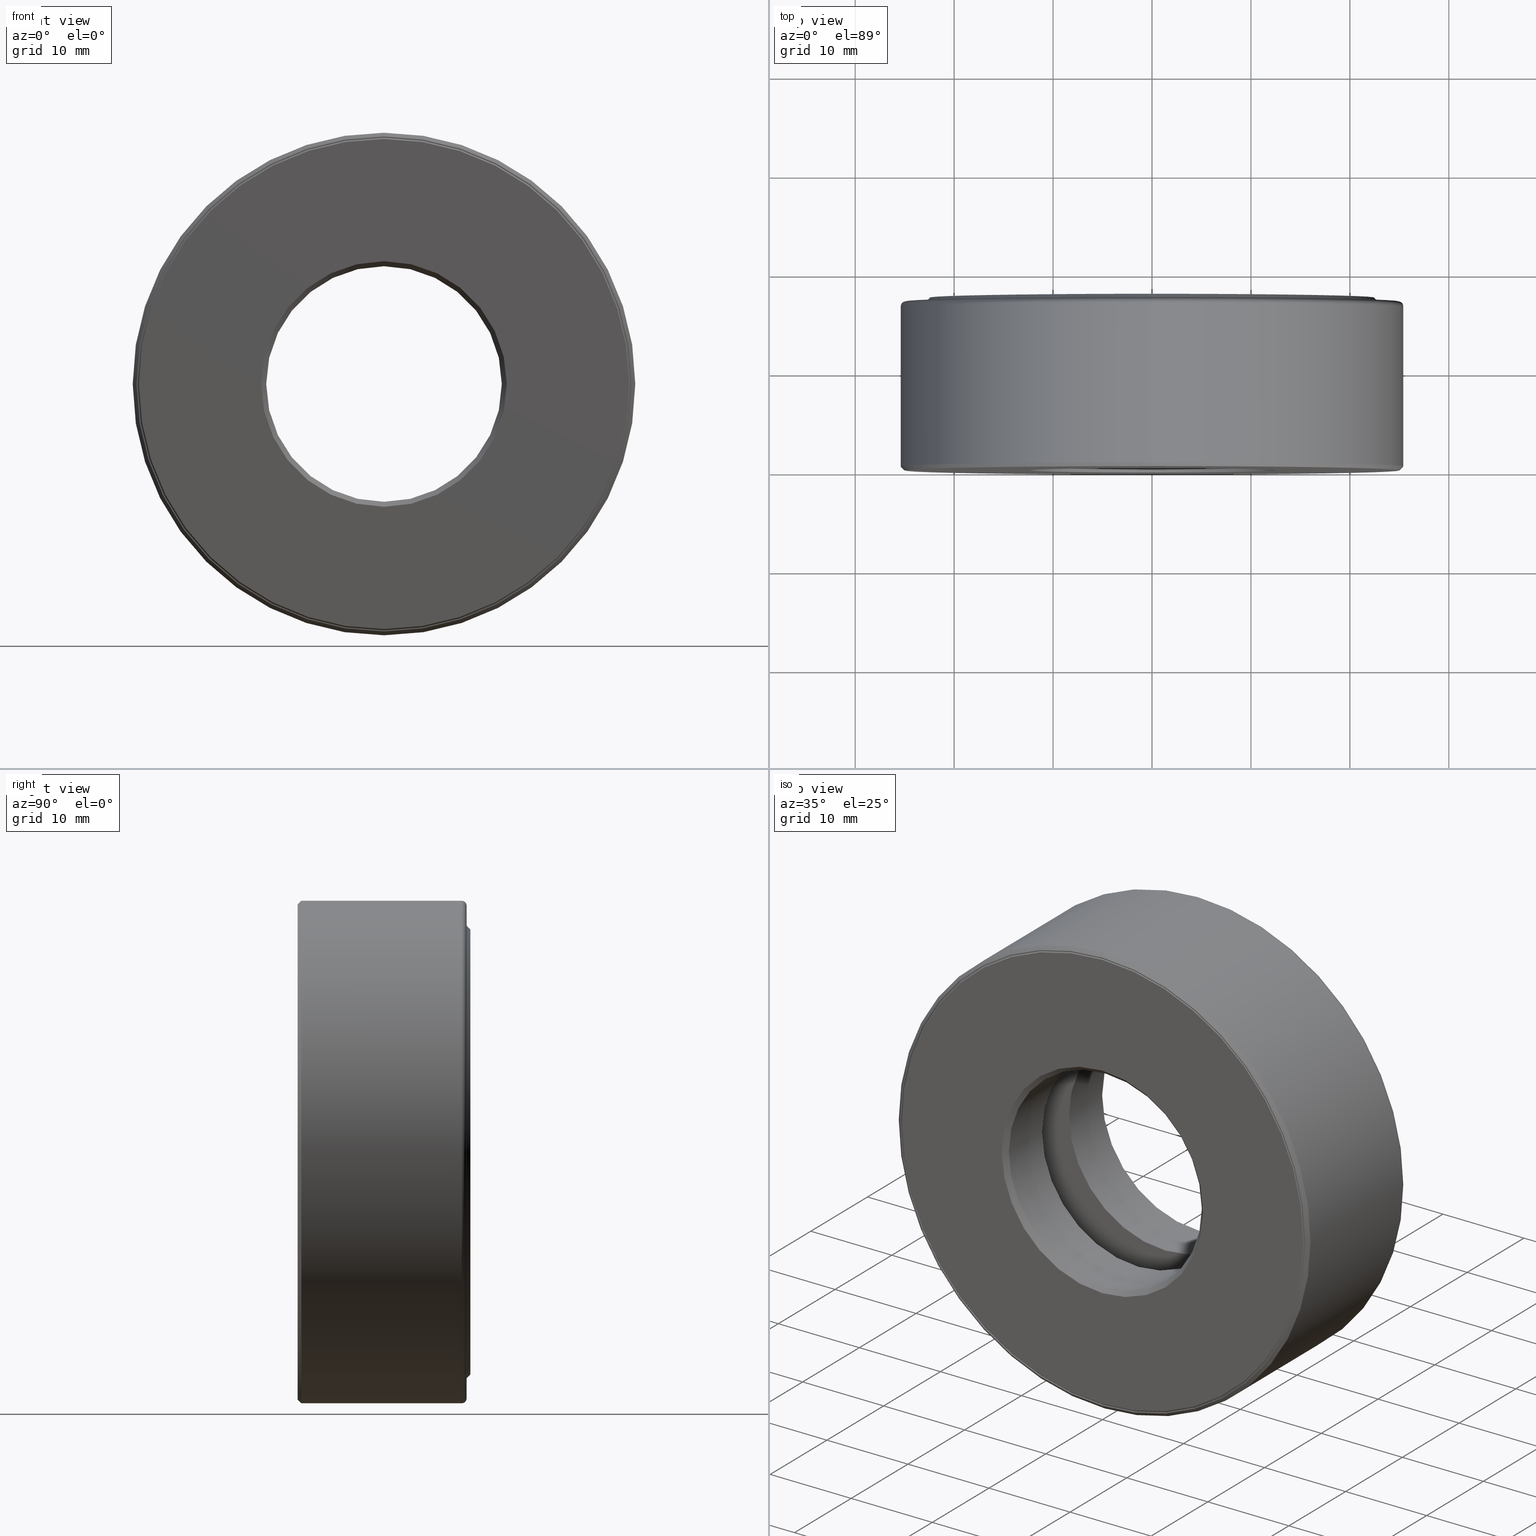
[diagram: canonical four-view strip — front | top / right | iso, engineering-drawing reading convention]
A machine part, canonical four-view strip (front | top / right | iso — engineering-drawing reading convention). The complete STEP part file that produces these views, byte-faithful:
ISO-10303-21;
HEADER;
FILE_DESCRIPTION (( 'STEP AP203' ),
    '1' );
FILE_NAME ('T-100-6.step',
    '2016-06-29T18:27:14',
    ( '' ),
    ( '' ),
    'SwSTEP 2.0',
    'SolidWorks 2016',
    '' );
FILE_SCHEMA (( 'CONFIG_CONTROL_DESIGN' ));
ENDSEC;

DATA;
#1 = AXIS2_PLACEMENT_3D ( 'NONE', #404, #363, #543 ) ;
#2 = COORDINATED_UNIVERSAL_TIME_OFFSET ( 5, 0, .BEHIND. ) ;
#3 = FACE_OUTER_BOUND ( 'NONE', #171, .T. ) ;
#4 = EDGE_CURVE ( 'NONE', #430, #430, #428, .T. ) ;
#5 = CARTESIAN_POINT ( 'NONE',  ( 0.0000000000000000000, -6.616194359655631800E-017, 0.0000000000000000000 ) ) ;
#6 = DIRECTION ( 'NONE',  ( -0.0000000000000000000, 1.000000000000000000, -0.0000000000000000000 ) ) ;
#7 = CLOSED_SHELL ( 'NONE', ( #176 ) ) ;
#8 = CIRCLE ( 'NONE', #86, 0.6897499999999997500 ) ;
#9 = CC_DESIGN_PERSON_AND_ORGANIZATION_ASSIGNMENT ( #237, #167, ( #437 ) ) ;
#10 = VERTEX_POINT ( 'NONE', #209 ) ;
#11 = MANIFOLD_SOLID_BREP ( 'Revolve2[1]', #240 ) ;
#12 = AXIS2_PLACEMENT_3D ( 'NONE', #565, #425, #153 ) ;
#13 = EDGE_LOOP ( 'NONE', ( #570 ) ) ;
#14 = CARTESIAN_POINT ( 'NONE',  ( 0.0000000000000000000, 0.0000000000000000000, 0.0000000000000000000 ) ) ;
#15 = EDGE_LOOP ( 'NONE', ( #163 ) ) ;
#16 = PERSON_AND_ORGANIZATION ( #467, #351 ) ;
#17 = CARTESIAN_POINT ( 'NONE',  ( 0.0000000000000000000, 0.4375000000000000000, 0.9397499999999998600 ) ) ;
#18 = FACE_OUTER_BOUND ( 'NONE', #348, .T. ) ;
#19 = EDGE_CURVE ( 'NONE', #322, #322, #332, .T. ) ;
#20 = CARTESIAN_POINT ( 'NONE',  ( 0.0000000000000000000, 0.4375000000000000000, 0.6897499999999997500 ) ) ;
#21 = PERSON_AND_ORGANIZATION_ROLE ( 'design_owner' ) ;
#22 = ORIENTED_EDGE ( 'NONE', *, *, #99, .T. ) ;
#23 = EDGE_LOOP ( 'NONE', ( #373 ) ) ;
#24 = DIRECTION ( 'NONE',  ( 0.0000000000000000000, -0.0000000000000000000, -1.000000000000000000 ) ) ;
#25 = AXIS2_PLACEMENT_3D ( 'NONE', #553, #504, #82 ) ;
#26 = COORDINATED_UNIVERSAL_TIME_OFFSET ( 5, 0, .BEHIND. ) ;
#27 = SECURITY_CLASSIFICATION_LEVEL ( 'unclassified' ) ;
#28 = CC_DESIGN_DATE_AND_TIME_ASSIGNMENT ( #258, #71, ( #437 ) ) ;
#29 = MANIFOLD_SOLID_BREP ( 'BALLS[2]', #7 ) ;
#30 = EDGE_LOOP ( 'NONE', ( #81 ) ) ;
#31 = EDGE_LOOP ( 'NONE', ( #102 ) ) ;
#32 = DIRECTION ( 'NONE',  ( 0.0000000000000000000, 0.0000000000000000000, 1.000000000000000000 ) ) ;
#33 = FACE_BOUND ( 'NONE', #37, .T. ) ;
#34 = AXIS2_PLACEMENT_3D ( 'NONE', #471, #54, #100 ) ;
#35 = DIRECTION ( 'NONE',  ( 0.0000000000000000000, 0.0000000000000000000, 1.000000000000000000 ) ) ;
#36 = MANIFOLD_SOLID_BREP ( 'Revolve2[2]', #195 ) ;
#37 = EDGE_LOOP ( 'NONE', ( #576 ) ) ;
#38 = ORIENTED_EDGE ( 'NONE', *, *, #453, .T. ) ;
#39 = DIRECTION ( 'NONE',  ( -0.0000000000000000000, 1.000000000000000000, -0.0000000000000000000 ) ) ;
#40 = DIRECTION ( 'NONE',  ( 0.0000000000000000000, 0.0000000000000000000, 1.000000000000000000 ) ) ;
#41 = CARTESIAN_POINT ( 'NONE',  ( 0.0000000000000000000, 0.6875000000000000000, 0.0000000000000000000 ) ) ;
#42 = ADVANCED_FACE ( 'NONE', ( #215, #120 ), #401, .T. ) ;
#43 = EDGE_LOOP ( 'NONE', ( #563 ) ) ;
#44 = CYLINDRICAL_SURFACE ( 'NONE', #555, 0.4687500000000000000 ) ;
#45 = VERTEX_POINT ( 'NONE', #344 ) ;
#46 = CONICAL_SURFACE ( 'NONE', #251, 0.8849999999999996800, 0.7853981633974482800 ) ;
#47 = EDGE_CURVE ( 'NONE', #526, #526, #442, .T. ) ;
#48 = ADVANCED_FACE ( 'NONE', ( ), #275, .T. ) ;
#49 = ORIENTED_EDGE ( 'NONE', *, *, #339, .T. ) ;
#50 = FACE_OUTER_BOUND ( 'NONE', #447, .T. ) ;
#51 = CARTESIAN_POINT ( 'NONE',  ( 0.0000000000000000000, 0.6875000000000000000, 0.0000000000000000000 ) ) ;
#52 = AXIS2_PLACEMENT_3D ( 'NONE', #84, #561, #323 ) ;
#53 = ADVANCED_FACE ( 'NONE', ( #513, #536 ), #380, .F. ) ;
#54 = DIRECTION ( 'NONE',  ( -0.0000000000000000000, 1.000000000000000000, -0.0000000000000000000 ) ) ;
#55 = EDGE_CURVE ( 'NONE', #585, #585, #158, .T. ) ;
#56 = DIRECTION ( 'NONE',  ( -0.0000000000000000000, 1.000000000000000000, -0.0000000000000000000 ) ) ;
#57 = EDGE_LOOP ( 'NONE', ( #590 ) ) ;
#58 = ORIENTED_EDGE ( 'NONE', *, *, #308, .T. ) ;
#59 = DIRECTION ( 'NONE',  ( 0.0000000000000000000, 0.0000000000000000000, 1.000000000000000000 ) ) ;
#60 = VERTEX_POINT ( 'NONE', #573 ) ;
#61 = CIRCLE ( 'NONE', #173, 0.8849999999999996800 ) ;
#62 = APPROVAL_STATUS ( 'not_yet_approved' ) ;
#63 = AXIS2_PLACEMENT_3D ( 'NONE', #473, #478, #147 ) ;
#64 = DIRECTION ( 'NONE',  ( 0.0000000000000000000, -1.000000000000000000, 0.0000000000000000000 ) ) ;
#65 = CARTESIAN_POINT ( 'NONE',  ( 0.0000000000000000000, 0.2500000000000001100, 0.4687500000000001100 ) ) ;
#66 = CARTESIAN_POINT ( 'NONE',  ( 0.0000000000000000000, 0.6524999999999997500, 0.0000000000000000000 ) ) ;
#67 = ORIENTED_EDGE ( 'NONE', *, *, #542, .F. ) ;
#68 = FACE_OUTER_BOUND ( 'NONE', #310, .T. ) ;
#69 = CARTESIAN_POINT ( 'NONE',  ( 0.0000000000000000000, 0.6724999999999998800, 0.0000000000000000000 ) ) ;
#70 = DIRECTION ( 'NONE',  ( 0.0000000000000000000, -0.0000000000000000000, -1.000000000000000000 ) ) ;
#71 = DATE_TIME_ROLE ( 'creation_date' ) ;
#72 = EDGE_LOOP ( 'NONE', ( #104 ) ) ;
#73 = MANIFOLD_SOLID_BREP ( 'BALLS[3]', #219 ) ;
#74 = CYLINDRICAL_SURFACE ( 'NONE', #108, 0.4687500000000001100 ) ;
#75 = DIRECTION ( 'NONE',  ( -0.0000000000000000000, 1.000000000000000000, 0.0000000000000000000 ) ) ;
#76 = AXIS2_PLACEMENT_3D ( 'NONE', #229, #88, #365 ) ;
#77 = LOCAL_TIME ( 14, 27, 13.00000000000000000, #151 ) ;
#78 = CARTESIAN_POINT ( 'NONE',  ( 0.0000000000000000000, 0.01499999999999997700, 0.0000000000000000000 ) ) ;
#79 = ADVANCED_FACE ( 'NONE', ( #496, #490 ), #554, .T. ) ;
#80 = DIRECTION ( 'NONE',  ( 0.0000000000000000000, 0.0000000000000000000, 1.000000000000000000 ) ) ;
#81 = ORIENTED_EDGE ( 'NONE', *, *, #339, .F. ) ;
#82 = DIRECTION ( 'NONE',  ( -1.000000000000000000, 0.0000000000000000000, 6.982962677686269100E-015 ) ) ;
#83 = DIRECTION ( 'NONE',  ( 0.0000000000000000000, 0.0000000000000000000, 1.000000000000000000 ) ) ;
#84 = CARTESIAN_POINT ( 'NONE',  ( 0.0000000000000000000, 0.6724999999999998800, 0.0000000000000000000 ) ) ;
#85 = DIRECTION ( 'NONE',  ( 0.0000000000000000000, -0.0000000000000000000, -1.000000000000000000 ) ) ;
#86 = AXIS2_PLACEMENT_3D ( 'NONE', #550, #549, #83 ) ;
#87 = EDGE_LOOP ( 'NONE', ( #341 ) ) ;
#88 = DIRECTION ( 'NONE',  ( -0.0000000000000000000, 1.000000000000000000, -0.0000000000000000000 ) ) ;
#89 = ORIENTED_EDGE ( 'NONE', *, *, #347, .F. ) ;
#90 = LOCAL_TIME ( 14, 27, 13.00000000000000000, #2 ) ;
#91 = PRODUCT_RELATED_PRODUCT_CATEGORY ( 'detail', '', ( #569 ) ) ;
#92 = CIRCLE ( 'NONE', #214, 0.9397499999999998600 ) ;
#93 = AXIS2_PLACEMENT_3D ( 'NONE', #201, #283, #239 ) ;
#94 = ORIENTED_EDGE ( 'NONE', *, *, #324, .F. ) ;
#95 = DIRECTION ( 'NONE',  ( -0.0000000000000000000, 1.000000000000000000, -0.0000000000000000000 ) ) ;
#96 = DIRECTION ( 'NONE',  ( 0.0000000000000000000, -1.000000000000000000, 0.0000000000000000000 ) ) ;
#97 = DATE_AND_TIME ( #579, #196 ) ;
#98 = FACE_OUTER_BOUND ( 'NONE', #31, .T. ) ;
#99 = EDGE_CURVE ( 'NONE', #279, #279, #289, .T. ) ;
#100 = DIRECTION ( 'NONE',  ( 0.0000000000000000000, 0.0000000000000000000, 1.000000000000000000 ) ) ;
#101 = DIRECTION ( 'NONE',  ( -0.0000000000000000000, 1.000000000000000000, 0.0000000000000000000 ) ) ;
#102 = ORIENTED_EDGE ( 'NONE', *, *, #99, .F. ) ;
#103 = DIRECTION ( 'NONE',  ( -0.0000000000000000000, 1.000000000000000000, -0.0000000000000000000 ) ) ;
#104 = ORIENTED_EDGE ( 'NONE', *, *, #19, .F. ) ;
#105 = DIMENSIONAL_EXPONENTS ( 1.000000000000000000, 0.0000000000000000000, 0.0000000000000000000, 0.0000000000000000000, 0.0000000000000000000, 0.0000000000000000000, 0.0000000000000000000 ) ;
#106 = VERTEX_POINT ( 'NONE', #17 ) ;
#107 = FACE_BOUND ( 'NONE', #552, .T. ) ;
#108 = AXIS2_PLACEMENT_3D ( 'NONE', #142, #95, #438 ) ;
#109 =( NAMED_UNIT ( * ) SI_UNIT ( $, .STERADIAN. ) SOLID_ANGLE_UNIT ( ) );
#110 = AXIS2_PLACEMENT_3D ( 'NONE', #540, #415, #409 ) ;
#111 = CARTESIAN_POINT ( 'NONE',  ( 0.0000000000000000000, 0.2499999999999999200, 0.9799999999999997600 ) ) ;
#112 = ORIENTED_EDGE ( 'NONE', *, *, #562, .F. ) ;
#113 = FACE_OUTER_BOUND ( 'NONE', #15, .T. ) ;
#114 = APPROVAL ( #439, 'UNSPECIFIED' ) ;
#115 = CARTESIAN_POINT ( 'NONE',  ( 0.0000000000000000000, -6.296055922898104700E-017, 0.9749999999999999800 ) ) ;
#116 = FACE_OUTER_BOUND ( 'NONE', #530, .T. ) ;
#117 = CARTESIAN_POINT ( 'NONE',  ( 0.0000000000000000000, 0.6524999999999997500, 1.000000000000000000 ) ) ;
#118 = CARTESIAN_POINT ( 'NONE',  ( 0.0000000000000000000, 0.0000000000000000000, 0.0000000000000000000 ) ) ;
#119 = ORIENTED_EDGE ( 'NONE', *, *, #448, .F. ) ;
#120 = FACE_OUTER_BOUND ( 'NONE', #23, .T. ) ;
#121 = AXIS2_PLACEMENT_3D ( 'NONE', #182, #227, #271 ) ;
#122 = PERSON_AND_ORGANIZATION_ROLE ( 'creator' ) ;
#123 = CALENDAR_DATE ( 2016, 29, 6 ) ;
#124 = EDGE_LOOP ( 'NONE', ( #396 ) ) ;
#125 = EDGE_LOOP ( 'NONE', ( #49 ) ) ;
#126 = CARTESIAN_POINT ( 'NONE',  ( 0.0000000000000000000, 0.005000000000000000100, 0.0000000000000000000 ) ) ;
#127 = AXIS2_PLACEMENT_3D ( 'NONE', #159, #484, #24 ) ;
#128 = PERSON_AND_ORGANIZATION ( #467, #351 ) ;
#129 = FACE_OUTER_BOUND ( 'NONE', #125, .T. ) ;
#130 = PLANE ( 'NONE',  #370 ) ;
#131 =( GEOMETRIC_REPRESENTATION_CONTEXT ( 3 ) GLOBAL_UNCERTAINTY_ASSIGNED_CONTEXT ( ( #598 ) ) GLOBAL_UNIT_ASSIGNED_CONTEXT ( ( #432, #346, #109 ) ) REPRESENTATION_CONTEXT ( 'NONE', 'WORKASPACE' ) );
#132 = CARTESIAN_POINT ( 'NONE',  ( 0.0000000000000000000, 0.3437499999999998300, 0.0000000000000000000 ) ) ;
#133 = DIRECTION ( 'NONE',  ( -0.0000000000000000000, 1.000000000000000000, 0.0000000000000000000 ) ) ;
#134 = ORIENTED_EDGE ( 'NONE', *, *, #317, .F. ) ;
#135 = CIRCLE ( 'NONE', #121, 0.4687500000000001100 ) ;
#136 = CC_DESIGN_PERSON_AND_ORGANIZATION_ASSIGNMENT ( #16, #170, ( #477 ) ) ;
#137 = COORDINATED_UNIVERSAL_TIME_OFFSET ( 5, 0, .BEHIND. ) ;
#138 = AXIS2_PLACEMENT_3D ( 'NONE', #517, #193, #465 ) ;
#139 = ADVANCED_FACE ( 'NONE', ( #356, #236 ), #482, .F. ) ;
#140 = EDGE_LOOP ( 'NONE', ( #364 ) ) ;
#141 = EDGE_LOOP ( 'NONE', ( #507 ) ) ;
#142 = CARTESIAN_POINT ( 'NONE',  ( 0.0000000000000000000, 0.0000000000000000000, 0.0000000000000000000 ) ) ;
#143 = PERSON_AND_ORGANIZATION ( #467, #351 ) ;
#144 = AXIS2_PLACEMENT_3D ( 'NONE', #222, #226, #368 ) ;
#145 = CC_DESIGN_APPROVAL ( #114, ( #276 ) ) ;
#146 = CIRCLE ( 'NONE', #224, 0.9799999999999997600 ) ;
#147 = DIRECTION ( 'NONE',  ( 1.047444401652940000E-014, 0.0000000000000000000, 1.000000000000000000 ) ) ;
#148 = CARTESIAN_POINT ( 'NONE',  ( -8.194164824205915600E-033, -3.148027961449053600E-017, 0.0000000000000000000 ) ) ;
#149 = EDGE_LOOP ( 'NONE', ( #399 ) ) ;
#150 = EDGE_LOOP ( 'NONE', ( #228 ) ) ;
#151 = COORDINATED_UNIVERSAL_TIME_OFFSET ( 5, 0, .BEHIND. ) ;
#152 = AXIS2_PLACEMENT_3D ( 'NONE', #359, #39, #367 ) ;
#153 = DIRECTION ( 'NONE',  ( 0.0000000000000000000, 0.0000000000000000000, 1.000000000000000000 ) ) ;
#154 = PLANE ( 'NONE',  #235 ) ;
#155 = CC_DESIGN_DATE_AND_TIME_ASSIGNMENT ( #498, #587, ( #477 ) ) ;
#156 = EDGE_LOOP ( 'NONE', ( #568 ) ) ;
#157 = DIRECTION ( 'NONE',  ( 0.0000000000000000000, 0.0000000000000000000, 1.000000000000000000 ) ) ;
#158 = CIRCLE ( 'NONE', #76, 0.4687500000000001100 ) ;
#159 = CARTESIAN_POINT ( 'NONE',  ( 2.120999995080945500E-016, 0.2499999999999999200, 0.0000000000000000000 ) ) ;
#160 = FACE_OUTER_BOUND ( 'NONE', #141, .T. ) ;
#161 = AXIS2_PLACEMENT_3D ( 'NONE', #529, #208, #157 ) ;
#162 = CARTESIAN_POINT ( 'NONE',  ( 0.0000000000000000000, -6.398792618417301800E-017, 0.9799999999999997600 ) ) ;
#163 = ORIENTED_EDGE ( 'NONE', *, *, #4, .F. ) ;
#164 = FACE_OUTER_BOUND ( 'NONE', #273, .T. ) ;
#165 = CARTESIAN_POINT ( 'NONE',  ( 0.0000000000000000000, 0.0000000000000000000, 0.4887500000000000700 ) ) ;
#166 = VERTEX_POINT ( 'NONE', #20 ) ;
#167 = PERSON_AND_ORGANIZATION_ROLE ( 'creator' ) ;
#168 = CARTESIAN_POINT ( 'NONE',  ( 0.0000000000000000000, 0.2499999999999998900, 0.0000000000000000000 ) ) ;
#169 = CARTESIAN_POINT ( 'NONE',  ( 0.0000000000000000000, 0.02000000000000005900, 0.0000000000000000000 ) ) ;
#170 = PERSON_AND_ORGANIZATION_ROLE ( 'classification_officer' ) ;
#171 = EDGE_LOOP ( 'NONE', ( #489 ) ) ;
#172 = SPHERICAL_SURFACE ( 'NONE', #25, 0.1562500000000000000 ) ;
#173 = AXIS2_PLACEMENT_3D ( 'NONE', #41, #318, #177 ) ;
#174 = CALENDAR_DATE ( 2016, 29, 6 ) ;
#175 = FACE_BOUND ( 'NONE', #440, .T. ) ;
#176 = ADVANCED_FACE ( 'NONE', ( ), #172, .T. ) ;
#177 = DIRECTION ( 'NONE',  ( 0.0000000000000000000, 0.0000000000000000000, 1.000000000000000000 ) ) ;
#178 = CC_DESIGN_PERSON_AND_ORGANIZATION_ASSIGNMENT ( #584, #122, ( #276 ) ) ;
#179 = DIRECTION ( 'NONE',  ( 0.0000000000000000000, -1.000000000000000000, 0.0000000000000000000 ) ) ;
#180 = EDGE_CURVE ( 'NONE', #284, #284, #230, .T. ) ;
#181 = ORIENTED_EDGE ( 'NONE', *, *, #349, .T. ) ;
#182 = CARTESIAN_POINT ( 'NONE',  ( 0.0000000000000000000, 0.2500000000000001100, 0.0000000000000000000 ) ) ;
#183 = FACE_OUTER_BOUND ( 'NONE', #30, .T. ) ;
#184 = ADVANCED_FACE ( 'NONE', ( #113, #257 ), #44, .F. ) ;
#185 = DIRECTION ( 'NONE',  ( -0.0000000000000000000, 1.000000000000000000, -0.0000000000000000000 ) ) ;
#186 = AXIS2_PLACEMENT_3D ( 'NONE', #126, #499, #405 ) ;
#187 = EDGE_LOOP ( 'NONE', ( #67 ) ) ;
#188 = FACE_OUTER_BOUND ( 'NONE', #72, .T. ) ;
#189 = CARTESIAN_POINT ( 'NONE',  ( 0.0000000000000000000, -6.296055922898104700E-017, 0.0000000000000000000 ) ) ;
#190 = CARTESIAN_POINT ( 'NONE',  ( -1.574715117770886900E-031, -6.507493489036469200E-017, 0.0000000000000000000 ) ) ;
#191 = VERTEX_POINT ( 'NONE', #429 ) ;
#192 = CIRCLE ( 'NONE', #93, 0.4887500000000000700 ) ;
#193 = DIRECTION ( 'NONE',  ( -0.0000000000000000000, 1.000000000000000000, -0.0000000000000000000 ) ) ;
#194 = AXIS2_PLACEMENT_3D ( 'NONE', #207, #488, #527 ) ;
#195 = CLOSED_SHELL ( 'NONE', ( #42, #53, #374, #225, #599, #309, #501, #377 ) ) ;
#196 = LOCAL_TIME ( 14, 27, 13.00000000000000000, #468 ) ;
#197 = CYLINDRICAL_SURFACE ( 'NONE', #427, 0.9200000000000000400 ) ;
#198 = DIRECTION ( 'NONE',  ( -0.0000000000000000000, 1.000000000000000000, 0.0000000000000000000 ) ) ;
#199 = DESIGN_CONTEXT ( 'detailed design', #291, 'design' ) ;
#200 = CC_DESIGN_APPROVAL ( #510, ( #477 ) ) ;
#201 = CARTESIAN_POINT ( 'NONE',  ( 0.0000000000000000000, 0.6875000000000000000, 0.0000000000000000000 ) ) ;
#202 = ORIENTED_EDGE ( 'NONE', *, *, #326, .T. ) ;
#203 = CIRCLE ( 'NONE', #539, 0.4887500000000000700 ) ;
#204 = CARTESIAN_POINT ( 'NONE',  ( 0.0000000000000000000, 0.4375000000000000000, 0.0000000000000000000 ) ) ;
#205 = ADVANCED_FACE ( 'NONE', ( #302, #591 ), #320, .F. ) ;
#206 = CONICAL_SURFACE ( 'NONE', #515, 0.4687500000000001100, 0.7853981633974466100 ) ;
#207 = CARTESIAN_POINT ( 'NONE',  ( 2.844684420822442200E-015, 0.3437499999999998300, 0.8147499999999998600 ) ) ;
#208 = DIRECTION ( 'NONE',  ( -0.0000000000000000000, 1.000000000000000000, -0.0000000000000000000 ) ) ;
#209 = CARTESIAN_POINT ( 'NONE',  ( 0.0000000000000000000, 0.5995000000000001400, 0.9729999999999995300 ) ) ;
#210 = EDGE_LOOP ( 'NONE', ( #480 ) ) ;
#211 = DIRECTION ( 'NONE',  ( -0.0000000000000000000, 1.000000000000000000, -0.0000000000000000000 ) ) ;
#212 = CIRCLE ( 'NONE', #345, 0.9200000000000000400 ) ;
#213 = CARTESIAN_POINT ( 'NONE',  ( 0.0000000000000000000, 0.6724999999999998800, 0.9200000000000000400 ) ) ;
#214 = AXIS2_PLACEMENT_3D ( 'NONE', #204, #518, #286 ) ;
#215 = FACE_BOUND ( 'NONE', #426, .T. ) ;
#216 = VERTEX_POINT ( 'NONE', #581 ) ;
#217 = CYLINDRICAL_SURFACE ( 'NONE', #534, 0.9729999999999997500 ) ;
#218 = DIRECTION ( 'NONE',  ( 0.0000000000000000000, -1.000000000000000000, 0.0000000000000000000 ) ) ;
#219 = CLOSED_SHELL ( 'NONE', ( #548 ) ) ;
#220 = AXIS2_PLACEMENT_3D ( 'NONE', #545, #274, #407 ) ;
#221 = CIRCLE ( 'NONE', #12, 0.9749999999999999800 ) ;
#222 = CARTESIAN_POINT ( 'NONE',  ( 0.0000000000000000000, 0.6524999999999997500, 0.0000000000000000000 ) ) ;
#223 = DIRECTION ( 'NONE',  ( 0.0000000000000000000, 0.0000000000000000000, 1.000000000000000000 ) ) ;
#224 = AXIS2_PLACEMENT_3D ( 'NONE', #268, #185, #316 ) ;
#225 = ADVANCED_FACE ( 'NONE', ( #459, #385 ), #74, .F. ) ;
#226 = DIRECTION ( 'NONE',  ( -0.0000000000000000000, 1.000000000000000000, -0.0000000000000000000 ) ) ;
#227 = DIRECTION ( 'NONE',  ( -0.0000000000000000000, 1.000000000000000000, -0.0000000000000000000 ) ) ;
#228 = ORIENTED_EDGE ( 'NONE', *, *, #546, .T. ) ;
#229 = CARTESIAN_POINT ( 'NONE',  ( 0.0000000000000000000, 0.4374999999999998900, 0.0000000000000000000 ) ) ;
#230 = CIRCLE ( 'NONE', #52, 0.9200000000000000400 ) ;
#231 = ADVANCED_FACE ( 'NONE', ( #188, #281 ), #270, .T. ) ;
#232 = DIRECTION ( 'NONE',  ( 0.0000000000000000000, 0.0000000000000000000, 1.000000000000000000 ) ) ;
#233 = APPROVAL_PERSON_ORGANIZATION ( #358, #510, #304 ) ;
#234 = TOROIDAL_SURFACE ( 'NONE', #386, 0.9799999999999999800, 0.02000000000000005900 ) ;
#235 = AXIS2_PLACEMENT_3D ( 'NONE', #419, #198, #520 ) ;
#236 = FACE_OUTER_BOUND ( 'NONE', #495, .T. ) ;
#237 = PERSON_AND_ORGANIZATION ( #467, #351 ) ;
#238 = FACE_OUTER_BOUND ( 'NONE', #156, .T. ) ;
#239 = DIRECTION ( 'NONE',  ( 0.0000000000000000000, 0.0000000000000000000, 1.000000000000000000 ) ) ;
#240 = CLOSED_SHELL ( 'NONE', ( #139, #558, #329, #424, #449, #313, #551, #231, #514, #410, #205, #79, #521, #406, #184, #454 ) ) ;
#241 = DIRECTION ( 'NONE',  ( 0.0000000000000000000, -1.000000000000000000, 0.0000000000000000000 ) ) ;
#242 = AXIS2_PLACEMENT_3D ( 'NONE', #189, #511, #556 ) ;
#243 = DATE_AND_TIME ( #174, #77 ) ;
#244 = CARTESIAN_POINT ( 'NONE',  ( -1.545162892344044500E-016, 0.2500000000000000600, 0.0000000000000000000 ) ) ;
#245 = PLANE ( 'NONE',  #586 ) ;
#246 = CARTESIAN_POINT ( 'NONE',  ( 0.0000000000000000000, 0.6674999999999998700, 0.0000000000000000000 ) ) ;
#247 = EDGE_LOOP ( 'NONE', ( #416 ) ) ;
#248 = ORIENTED_EDGE ( 'NONE', *, *, #486, .F. ) ;
#249 = CARTESIAN_POINT ( 'NONE',  ( 0.0000000000000000000, 0.6524999999999997500, 0.9799999999999999800 ) ) ;
#250 = FACE_OUTER_BOUND ( 'NONE', #400, .T. ) ;
#251 = AXIS2_PLACEMENT_3D ( 'NONE', #51, #96, #330 ) ;
#252 = CARTESIAN_POINT ( 'NONE',  ( 0.0000000000000000000, 0.4374999999999998900, 0.4687500000000001100 ) ) ;
#253 = DIRECTION ( 'NONE',  ( 0.0000000000000000000, 0.0000000000000000000, 1.000000000000000000 ) ) ;
#254 = AXIS2_PLACEMENT_3D ( 'NONE', #168, #588, #32 ) ;
#255 = CARTESIAN_POINT ( 'NONE',  ( 0.0000000000000000000, 0.6724999999999998800, 0.9799999999999999800 ) ) ;
#256 = ORIENTED_EDGE ( 'NONE', *, *, #546, .F. ) ;
#257 = FACE_OUTER_BOUND ( 'NONE', #524, .T. ) ;
#258 = DATE_AND_TIME ( #123, #90 ) ;
#259 = APPROVAL_ROLE ( '' ) ;
#260 = CARTESIAN_POINT ( 'NONE',  ( 0.0000000000000000000, 0.0000000000000000000, 0.0000000000000000000 ) ) ;
#261 = ORIENTED_EDGE ( 'NONE', *, *, #180, .F. ) ;
#262 = AXIS2_PLACEMENT_3D ( 'NONE', #266, #133, #223 ) ;
#263 = CIRCLE ( 'NONE', #254, 0.9397499999999998600 ) ;
#264 = VERTEX_POINT ( 'NONE', #575 ) ;
#265 = FACE_OUTER_BOUND ( 'NONE', #601, .T. ) ;
#266 = CARTESIAN_POINT ( 'NONE',  ( 0.0000000000000000000, 0.6875000000000000000, 0.0000000000000000000 ) ) ;
#267 = EDGE_CURVE ( 'NONE', #216, #216, #263, .T. ) ;
#268 = CARTESIAN_POINT ( 'NONE',  ( 0.0000000000000000000, -6.398792618417301800E-017, 0.0000000000000000000 ) ) ;
#269 = ORIENTED_EDGE ( 'NONE', *, *, #357, .F. ) ;
#270 = CYLINDRICAL_SURFACE ( 'NONE', #445, 1.000000000000000000 ) ;
#271 = DIRECTION ( 'NONE',  ( 0.0000000000000000000, 0.0000000000000000000, 1.000000000000000000 ) ) ;
#272 = APPROVAL_PERSON_ORGANIZATION ( #278, #508, #259 ) ;
#273 = EDGE_LOOP ( 'NONE', ( #202 ) ) ;
#274 = DIRECTION ( 'NONE',  ( -0.0000000000000000000, 1.000000000000000000, -0.0000000000000000000 ) ) ;
#275 = SPHERICAL_SURFACE ( 'NONE', #110, 0.1562500000000000000 ) ;
#276 = PRODUCT_DEFINITION_FORMATION_WITH_SPECIFIED_SOURCE ( 'ANY', '', #569, .NOT_KNOWN. ) ;
#277 = ADVANCED_BREP_SHAPE_REPRESENTATION ( 'T-100-6', ( #11, #36, #578, #470, #29, #73, #472 ), #131 ) ;
#278 = PERSON_AND_ORGANIZATION ( #467, #351 ) ;
#279 = VERTEX_POINT ( 'NONE', #111 ) ;
#280 = ORIENTED_EDGE ( 'NONE', *, *, #55, .F. ) ;
#281 = FACE_OUTER_BOUND ( 'NONE', #87, .T. ) ;
#282 = AXIS2_PLACEMENT_3D ( 'NONE', #148, #101, #59 ) ;
#283 = DIRECTION ( 'NONE',  ( -0.0000000000000000000, 1.000000000000000000, -0.0000000000000000000 ) ) ;
#284 = VERTEX_POINT ( 'NONE', #213 ) ;
#285 = EDGE_CURVE ( 'NONE', #375, #375, #203, .T. ) ;
#286 = DIRECTION ( 'NONE',  ( 0.0000000000000000000, 0.0000000000000000000, 1.000000000000000000 ) ) ;
#287 = EDGE_LOOP ( 'NONE', ( #134 ) ) ;
#288 = DIRECTION ( 'NONE',  ( -0.0000000000000000000, 1.000000000000000000, -0.0000000000000000000 ) ) ;
#289 = CIRCLE ( 'NONE', #220, 0.9799999999999997600 ) ;
#290 = AXIS2_PLACEMENT_3D ( 'NONE', #78, #541, #35 ) ;
#291 = APPLICATION_CONTEXT ( 'configuration controlled 3d designs of mechanical parts and assemblies' ) ;
#292 = CONICAL_SURFACE ( 'NONE', #34, 0.9849999999999999900, 0.7853981633974415100 ) ;
#293 = CARTESIAN_POINT ( 'NONE',  ( 0.0000000000000000000, 0.6524999999999997500, 0.9200000000000000400 ) ) ;
#294 = EDGE_CURVE ( 'NONE', #166, #166, #8, .T. ) ;
#295 = EDGE_LOOP ( 'NONE', ( #414 ) ) ;
#296 = FACE_BOUND ( 'NONE', #295, .T. ) ;
#297 = CARTESIAN_POINT ( 'NONE',  ( 0.0000000000000000000, -6.616194359655631800E-017, 0.9849999999999999900 ) ) ;
#298 = DIRECTION ( 'NONE',  ( 0.0000000000000000000, 0.0000000000000000000, 1.000000000000000000 ) ) ;
#299 = DIRECTION ( 'NONE',  ( -0.0000000000000000000, 1.000000000000000000, -0.0000000000000000000 ) ) ;
#300 = APPROVAL_STATUS ( 'not_yet_approved' ) ;
#301 = ORIENTED_EDGE ( 'NONE', *, *, #317, .T. ) ;
#302 = FACE_OUTER_BOUND ( 'NONE', #466, .T. ) ;
#303 = DIRECTION ( 'NONE',  ( -0.0000000000000000000, 1.000000000000000000, -0.0000000000000000000 ) ) ;
#304 = APPROVAL_ROLE ( '' ) ;
#305 = VERTEX_POINT ( 'NONE', #436 ) ;
#306 = DIRECTION ( 'NONE',  ( 0.0000000000000000000, 0.0000000000000000000, 1.000000000000000000 ) ) ;
#307 = CC_DESIGN_SECURITY_CLASSIFICATION ( #477, ( #276 ) ) ;
#308 = EDGE_CURVE ( 'NONE', #476, #476, #135, .T. ) ;
#309 = ADVANCED_FACE ( 'NONE', ( #164, #583 ), #362, .T. ) ;
#310 = EDGE_LOOP ( 'NONE', ( #89 ) ) ;
#311 = DIRECTION ( 'NONE',  ( -0.0000000000000000000, 1.000000000000000000, -0.0000000000000000000 ) ) ;
#312 = APPROVAL_DATE_TIME ( #97, #510 ) ;
#313 = ADVANCED_FACE ( 'NONE', ( #435, #129 ), #533, .F. ) ;
#314 = CARTESIAN_POINT ( 'NONE',  ( 0.0000000000000000000, 0.3437499999999998300, 0.0000000000000000000 ) ) ;
#315 = CIRCLE ( 'NONE', #1, 0.9729999999999998600 ) ;
#316 = DIRECTION ( 'NONE',  ( 0.0000000000000000000, 0.0000000000000000000, 1.000000000000000000 ) ) ;
#317 = EDGE_CURVE ( 'NONE', #264, #264, #538, .T. ) ;
#318 = DIRECTION ( 'NONE',  ( -0.0000000000000000000, 1.000000000000000000, -0.0000000000000000000 ) ) ;
#319 = CLOSED_SHELL ( 'NONE', ( #595 ) ) ;
#320 = CYLINDRICAL_SURFACE ( 'NONE', #138, 0.9799999999999999800 ) ;
#321 = CALENDAR_DATE ( 2016, 29, 6 ) ;
#322 = VERTEX_POINT ( 'NONE', #117 ) ;
#323 = DIRECTION ( 'NONE',  ( 0.0000000000000000000, 0.0000000000000000000, 1.000000000000000000 ) ) ;
#324 = EDGE_CURVE ( 'NONE', #397, #397, #146, .T. ) ;
#325 = ORIENTED_EDGE ( 'NONE', *, *, #294, .T. ) ;
#326 = EDGE_CURVE ( 'NONE', #305, #305, #61, .T. ) ;
#327 = CIRCLE ( 'NONE', #186, 0.9799999999999999800 ) ;
#328 = DIRECTION ( 'NONE',  ( 0.0000000000000000000, 0.0000000000000000000, 1.000000000000000000 ) ) ;
#329 = ADVANCED_FACE ( 'NONE', ( #98, #3 ), #336, .F. ) ;
#330 = DIRECTION ( 'NONE',  ( 0.0000000000000000000, 0.0000000000000000000, -1.000000000000000000 ) ) ;
#331 = ORIENTED_EDGE ( 'NONE', *, *, #47, .F. ) ;
#332 = CIRCLE ( 'NONE', #603, 1.000000000000000000 ) ;
#333 = AXIS2_PLACEMENT_3D ( 'NONE', #132, #600, #40 ) ;
#334 = CARTESIAN_POINT ( 'NONE',  ( 0.0000000000000000000, 0.2499999999999999700, 0.0000000000000000000 ) ) ;
#335 = LOCAL_TIME ( 14, 27, 13.00000000000000000, #137 ) ;
#336 = CYLINDRICAL_SURFACE ( 'NONE', #152, 0.9799999999999999800 ) ;
#337 = PLANE ( 'NONE',  #282 ) ;
#338 = APPLICATION_PROTOCOL_DEFINITION ( 'international standard', 'config_control_design', 1994, #291 ) ;
#339 = EDGE_CURVE ( 'NONE', #509, #509, #376, .T. ) ;
#340 = CARTESIAN_POINT ( 'NONE',  ( 0.0000000000000000000, 0.02000000000000005900, 0.0000000000000000000 ) ) ;
#341 = ORIENTED_EDGE ( 'NONE', *, *, #347, .T. ) ;
#342 = DATE_AND_TIME ( #443, #604 ) ;
#343 = FACE_OUTER_BOUND ( 'NONE', #124, .T. ) ;
#344 = CARTESIAN_POINT ( 'NONE',  ( 0.0000000000000000000, 0.4374999999999998900, 0.9729999999999998600 ) ) ;
#345 = AXIS2_PLACEMENT_3D ( 'NONE', #523, #288, #572 ) ;
#346 =( NAMED_UNIT ( * ) PLANE_ANGLE_UNIT ( ) SI_UNIT ( $, .RADIAN. ) );
#347 = EDGE_CURVE ( 'NONE', #537, #537, #559, .T. ) ;
#348 = EDGE_LOOP ( 'NONE', ( #248 ) ) ;
#349 = EDGE_CURVE ( 'NONE', #45, #45, #315, .T. ) ;
#350 = CLOSED_SHELL ( 'NONE', ( #48 ) ) ;
#351 = ORGANIZATION ( 'UNSPECIFIED', 'UNSPECIFIED', '' ) ;
#352 = SPHERICAL_SURFACE ( 'NONE', #194, 0.1562500000000000000 ) ;
#353 = DIRECTION ( 'NONE',  ( 0.0000000000000000000, 0.0000000000000000000, 1.000000000000000000 ) ) ;
#354 = AXIS2_PLACEMENT_3D ( 'NONE', #5, #103, #328 ) ;
#355 = ORIENTED_EDGE ( 'NONE', *, *, #448, .T. ) ;
#356 = FACE_OUTER_BOUND ( 'NONE', #140, .T. ) ;
#357 = EDGE_CURVE ( 'NONE', #60, #60, #327, .T. ) ;
#358 = PERSON_AND_ORGANIZATION ( #467, #351 ) ;
#359 = CARTESIAN_POINT ( 'NONE',  ( 0.0000000000000000000, 0.0000000000000000000, 0.0000000000000000000 ) ) ;
#360 = FACE_OUTER_BOUND ( 'NONE', #506, .T. ) ;
#361 = DIRECTION ( 'NONE',  ( -0.0000000000000000000, 1.000000000000000000, -0.0000000000000000000 ) ) ;
#362 = PLANE ( 'NONE',  #262 ) ;
#363 = DIRECTION ( 'NONE',  ( -0.0000000000000000000, 1.000000000000000000, -0.0000000000000000000 ) ) ;
#364 = ORIENTED_EDGE ( 'NONE', *, *, #483, .F. ) ;
#365 = DIRECTION ( 'NONE',  ( 0.0000000000000000000, 0.0000000000000000000, 1.000000000000000000 ) ) ;
#366 = EDGE_LOOP ( 'NONE', ( #384 ) ) ;
#367 = DIRECTION ( 'NONE',  ( 0.0000000000000000000, 0.0000000000000000000, 1.000000000000000000 ) ) ;
#368 = DIRECTION ( 'NONE',  ( 0.0000000000000000000, 0.0000000000000000000, 1.000000000000000000 ) ) ;
#369 = AXIS2_PLACEMENT_3D ( 'NONE', #502, #218, #70 ) ;
#370 = AXIS2_PLACEMENT_3D ( 'NONE', #450, #179, #503 ) ;
#371 = DIRECTION ( 'NONE',  ( 0.0000000000000000000, 0.0000000000000000000, 1.000000000000000000 ) ) ;
#372 = ORIENTED_EDGE ( 'NONE', *, *, #267, .T. ) ;
#373 = ORIENTED_EDGE ( 'NONE', *, *, #349, .F. ) ;
#374 = ADVANCED_FACE ( 'NONE', ( #500, #160 ), #130, .T. ) ;
#375 = VERTEX_POINT ( 'NONE', #165 ) ;
#376 = CIRCLE ( 'NONE', #566, 0.9799999999999999800 ) ;
#377 = ADVANCED_FACE ( 'NONE', ( #418, #265 ), #217, .T. ) ;
#378 = ORIENTED_EDGE ( 'NONE', *, *, #267, .F. ) ;
#379 = AXIS2_PLACEMENT_3D ( 'NONE', #340, #64, #390 ) ;
#380 = TOROIDAL_SURFACE ( 'NONE', #602, 0.8147499999999998600, 0.1562500000000001100 ) ;
#381 = AXIS2_PLACEMENT_3D ( 'NONE', #169, #303, #353 ) ;
#382 = DIRECTION ( 'NONE',  ( 0.0000000000000000000, 0.0000000000000000000, 1.000000000000000000 ) ) ;
#383 = CARTESIAN_POINT ( 'NONE',  ( 0.0000000000000000000, 0.02000000000000005900, 0.4687500000000000000 ) ) ;
#384 = ORIENTED_EDGE ( 'NONE', *, *, #357, .T. ) ;
#385 = FACE_OUTER_BOUND ( 'NONE', #535, .T. ) ;
#386 = AXIS2_PLACEMENT_3D ( 'NONE', #66, #211, #253 ) ;
#387 = DIRECTION ( 'NONE',  ( -0.0000000000000000000, 1.000000000000000000, -0.0000000000000000000 ) ) ;
#388 = APPROVAL_DATE_TIME ( #342, #114 ) ;
#389 = FACE_OUTER_BOUND ( 'NONE', #395, .T. ) ;
#390 = DIRECTION ( 'NONE',  ( 0.0000000000000000000, 0.0000000000000000000, -1.000000000000000000 ) ) ;
#391 =( LENGTH_UNIT ( ) NAMED_UNIT ( * ) SI_UNIT ( $, .METRE. ) );
#392 = PRODUCT_DEFINITION_SHAPE ( 'NONE', 'NONE',  #437 ) ;
#393 = DIRECTION ( 'NONE',  ( 0.0000000000000000000, 0.0000000000000000000, 1.000000000000000000 ) ) ;
#394 = PLANE ( 'NONE',  #127 ) ;
#395 = EDGE_LOOP ( 'NONE', ( #355 ) ) ;
#396 = ORIENTED_EDGE ( 'NONE', *, *, #562, .T. ) ;
#397 = VERTEX_POINT ( 'NONE', #162 ) ;
#398 = PERSON_AND_ORGANIZATION_ROLE ( 'design_supplier' ) ;
#399 = ORIENTED_EDGE ( 'NONE', *, *, #4, .T. ) ;
#400 = EDGE_LOOP ( 'NONE', ( #256 ) ) ;
#401 = PLANE ( 'NONE',  #369 ) ;
#402 = APPROVAL_PERSON_ORGANIZATION ( #571, #114, #491 ) ;
#403 = SHAPE_DEFINITION_REPRESENTATION ( #392, #277 ) ;
#404 = CARTESIAN_POINT ( 'NONE',  ( 0.0000000000000000000, 0.4374999999999998900, 0.0000000000000000000 ) ) ;
#405 = DIRECTION ( 'NONE',  ( 0.0000000000000000000, 0.0000000000000000000, 1.000000000000000000 ) ) ;
#406 = ADVANCED_FACE ( 'NONE', ( #238, #485 ), #564, .F. ) ;
#407 = DIRECTION ( 'NONE',  ( 0.0000000000000000000, 0.0000000000000000000, 1.000000000000000000 ) ) ;
#408 = ORIENTED_EDGE ( 'NONE', *, *, #308, .F. ) ;
#409 = DIRECTION ( 'NONE',  ( 1.000000000000000000, 0.0000000000000000000, 0.0000000000000000000 ) ) ;
#410 = ADVANCED_FACE ( 'NONE', ( #250, #33 ), #464, .F. ) ;
#411 = CARTESIAN_POINT ( 'NONE',  ( 0.0000000000000000000, 0.6724999999999998800, 0.0000000000000000000 ) ) ;
#412 = CC_DESIGN_PERSON_AND_ORGANIZATION_ASSIGNMENT ( #128, #21, ( #569 ) ) ;
#413 = CIRCLE ( 'NONE', #161, 0.9729999999999995300 ) ;
#414 = ORIENTED_EDGE ( 'NONE', *, *, #486, .T. ) ;
#415 = DIRECTION ( 'NONE',  ( 0.0000000000000000000, 0.0000000000000000000, -1.000000000000000000 ) ) ;
#416 = ORIENTED_EDGE ( 'NONE', *, *, #453, .F. ) ;
#417 = VERTEX_POINT ( 'NONE', #115 ) ;
#418 = FACE_OUTER_BOUND ( 'NONE', #512, .T. ) ;
#419 = CARTESIAN_POINT ( 'NONE',  ( 0.0000000000000000000, 0.6524999999999997500, 0.0000000000000000000 ) ) ;
#420 = ORIENTED_EDGE ( 'NONE', *, *, #483, .T. ) ;
#421 = CARTESIAN_POINT ( 'NONE',  ( 0.0000000000000000000, 0.0000000000000000000, 0.0000000000000000000 ) ) ;
#422 = SPHERICAL_SURFACE ( 'NONE', #63, 0.1562500000000000000 ) ;
#423 = DIRECTION ( 'NONE',  ( 0.0000000000000000000, 0.0000000000000000000, 1.000000000000000000 ) ) ;
#424 = ADVANCED_FACE ( 'NONE', ( #532, #296 ), #154, .F. ) ;
#425 = DIRECTION ( 'NONE',  ( -0.0000000000000000000, 1.000000000000000000, -0.0000000000000000000 ) ) ;
#426 = EDGE_LOOP ( 'NONE', ( #38 ) ) ;
#427 = AXIS2_PLACEMENT_3D ( 'NONE', #421, #6, #423 ) ;
#428 = CIRCLE ( 'NONE', #381, 0.4687500000000000000 ) ;
#429 = CARTESIAN_POINT ( 'NONE',  ( 0.0000000000000000000, 0.6875000000000000000, 0.4887500000000000700 ) ) ;
#430 = VERTEX_POINT ( 'NONE', #383 ) ;
#431 = CARTESIAN_POINT ( 'NONE',  ( 0.0000000000000000000, 0.01499999999999997700, 0.9999999999999998900 ) ) ;
#432 =( CONVERSION_BASED_UNIT ( 'INCH', #593 ) LENGTH_UNIT ( ) NAMED_UNIT ( #105 ) );
#433 = ORIENTED_EDGE ( 'NONE', *, *, #55, .T. ) ;
#434 = DIRECTION ( 'NONE',  ( 0.0000000000000000000, 0.0000000000000000000, 1.000000000000000000 ) ) ;
#435 = FACE_BOUND ( 'NONE', #606, .T. ) ;
#436 = CARTESIAN_POINT ( 'NONE',  ( 0.0000000000000000000, 0.6875000000000000000, 0.8849999999999996800 ) ) ;
#437 = PRODUCT_DEFINITION ( 'UNKNOWN', '', #276, #199 ) ;
#438 = DIRECTION ( 'NONE',  ( 0.0000000000000000000, 0.0000000000000000000, 1.000000000000000000 ) ) ;
#439 = APPROVAL_STATUS ( 'not_yet_approved' ) ;
#440 = EDGE_LOOP ( 'NONE', ( #408 ) ) ;
#441 = DIRECTION ( 'NONE',  ( -0.0000000000000000000, 1.000000000000000000, -0.0000000000000000000 ) ) ;
#442 = CIRCLE ( 'NONE', #144, 0.9799999999999999800 ) ;
#443 = CALENDAR_DATE ( 2016, 29, 6 ) ;
#444 = FACE_BOUND ( 'NONE', #210, .T. ) ;
#445 = AXIS2_PLACEMENT_3D ( 'NONE', #260, #441, #298 ) ;
#446 = CARTESIAN_POINT ( 'NONE',  ( 0.0000000000000000000, 0.6674999999999998700, 0.0000000000000000000 ) ) ;
#447 = EDGE_LOOP ( 'NONE', ( #22 ) ) ;
#448 = EDGE_CURVE ( 'NONE', #191, #191, #192, .T. ) ;
#449 = ADVANCED_FACE ( 'NONE', ( #18, #116 ), #197, .F. ) ;
#450 = CARTESIAN_POINT ( 'NONE',  ( 1.352017530801036200E-016, 0.4374999999999998900, 0.0000000000000000000 ) ) ;
#451 = CIRCLE ( 'NONE', #354, 0.9849999999999999900 ) ;
#452 = DIRECTION ( 'NONE',  ( 0.0000000000000000000, 0.0000000000000000000, 1.000000000000000000 ) ) ;
#453 = EDGE_CURVE ( 'NONE', #106, #106, #92, .T. ) ;
#454 = ADVANCED_FACE ( 'NONE', ( #175, #360 ), #245, .F. ) ;
#455 = CARTESIAN_POINT ( 'NONE',  ( 0.0000000000000000000, 0.0000000000000000000, 0.0000000000000000000 ) ) ;
#456 = DIRECTION ( 'NONE',  ( -0.0000000000000000000, 1.000000000000000000, -0.0000000000000000000 ) ) ;
#457 = DIRECTION ( 'NONE',  ( 0.0000000000000000000, 0.0000000000000000000, 1.000000000000000000 ) ) ;
#458 = EDGE_LOOP ( 'NONE', ( #301 ) ) ;
#459 = FACE_OUTER_BOUND ( 'NONE', #458, .T. ) ;
#460 = DIRECTION ( 'NONE',  ( -0.0000000000000000000, 1.000000000000000000, -0.0000000000000000000 ) ) ;
#461 = AXIS2_PLACEMENT_3D ( 'NONE', #69, #592, #85 ) ;
#462 = VERTEX_POINT ( 'NONE', #297 ) ;
#463 = FACE_BOUND ( 'NONE', #287, .T. ) ;
#464 = PLANE ( 'NONE',  #522 ) ;
#465 = DIRECTION ( 'NONE',  ( 0.0000000000000000000, 0.0000000000000000000, 1.000000000000000000 ) ) ;
#466 = EDGE_LOOP ( 'NONE', ( #94 ) ) ;
#467 = PERSON ( 'UNSPECIFIED', 'UNSPECIFIED', 'UNSPECIFIED', ('UNSPECIFIED'), ('UNSPECIFIED'), ('UNSPECIFIED') ) ;
#468 = COORDINATED_UNIVERSAL_TIME_OFFSET ( 5, 0, .BEHIND. ) ;
#469 = FACE_BOUND ( 'NONE', #150, .T. ) ;
#470 = MANIFOLD_SOLID_BREP ( 'BALLS[1]', #319 ) ;
#471 = CARTESIAN_POINT ( 'NONE',  ( 0.0000000000000000000, -6.616194359655631800E-017, 0.0000000000000000000 ) ) ;
#472 = AXIS2_PLACEMENT_3D ( 'NONE', #14, #434, #577 ) ;
#473 = CARTESIAN_POINT ( 'NONE',  ( -8.534053262467326700E-015, 0.3437499999999998300, -0.8147499999999998600 ) ) ;
#474 = EDGE_LOOP ( 'NONE', ( #433 ) ) ;
#475 = EDGE_LOOP ( 'NONE', ( #331 ) ) ;
#476 = VERTEX_POINT ( 'NONE', #65 ) ;
#477 = SECURITY_CLASSIFICATION ( '', '', #27 ) ;
#478 = DIRECTION ( 'NONE',  ( 1.000000000000000000, 0.0000000000000000000, -1.047444401652940000E-014 ) ) ;
#479 = APPLICATION_CONTEXT ( 'configuration controlled 3d designs of mechanical parts and assemblies' ) ;
#480 = ORIENTED_EDGE ( 'NONE', *, *, #285, .T. ) ;
#481 = AXIS2_PLACEMENT_3D ( 'NONE', #334, #56, #382 ) ;
#482 = TOROIDAL_SURFACE ( 'NONE', #333, 0.8147499999999998600, 0.1562500000000000000 ) ;
#483 = EDGE_CURVE ( 'NONE', #492, #492, #516, .T. ) ;
#484 = DIRECTION ( 'NONE',  ( 0.0000000000000000000, -1.000000000000000000, 0.0000000000000000000 ) ) ;
#485 = FACE_BOUND ( 'NONE', #149, .T. ) ;
#486 = EDGE_CURVE ( 'NONE', #519, #519, #212, .T. ) ;
#487 = MECHANICAL_CONTEXT ( 'NONE', #479, 'mechanical' ) ;
#488 = DIRECTION ( 'NONE',  ( -1.000000000000000000, 0.0000000000000000000, 3.491481338843134500E-015 ) ) ;
#489 = ORIENTED_EDGE ( 'NONE', *, *, #47, .T. ) ;
#490 = FACE_BOUND ( 'NONE', #57, .T. ) ;
#491 = APPROVAL_ROLE ( '' ) ;
#492 = VERTEX_POINT ( 'NONE', #531 ) ;
#493 = DIRECTION ( 'NONE',  ( -0.0000000000000000000, 1.000000000000000000, -0.0000000000000000000 ) ) ;
#494 = CARTESIAN_POINT ( 'NONE',  ( 0.0000000000000000000, 0.6524999999999997500, 0.0000000000000000000 ) ) ;
#495 = EDGE_LOOP ( 'NONE', ( #372 ) ) ;
#496 = FACE_OUTER_BOUND ( 'NONE', #605, .T. ) ;
#497 = DIRECTION ( 'NONE',  ( 0.0000000000000000000, 0.0000000000000000000, 1.000000000000000000 ) ) ;
#498 = DATE_AND_TIME ( #321, #335 ) ;
#499 = DIRECTION ( 'NONE',  ( -0.0000000000000000000, 1.000000000000000000, -0.0000000000000000000 ) ) ;
#500 = FACE_BOUND ( 'NONE', #474, .T. ) ;
#501 = ADVANCED_FACE ( 'NONE', ( #343, #594 ), #46, .T. ) ;
#502 = CARTESIAN_POINT ( 'NONE',  ( -8.986342084421963400E-016, 0.4374999999999998900, 0.0000000000000000000 ) ) ;
#503 = DIRECTION ( 'NONE',  ( 0.0000000000000000000, -0.0000000000000000000, -1.000000000000000000 ) ) ;
#504 = DIRECTION ( 'NONE',  ( 6.982962677686269100E-015, -0.0000000000000000000, 1.000000000000000000 ) ) ;
#505 = DIRECTION ( 'NONE',  ( -0.0000000000000000000, 1.000000000000000000, -0.0000000000000000000 ) ) ;
#506 = EDGE_LOOP ( 'NONE', ( #420 ) ) ;
#507 = ORIENTED_EDGE ( 'NONE', *, *, #294, .F. ) ;
#508 = APPROVAL ( #62, 'UNSPECIFIED' ) ;
#509 = VERTEX_POINT ( 'NONE', #255 ) ;
#510 = APPROVAL ( #300, 'UNSPECIFIED' ) ;
#511 = DIRECTION ( 'NONE',  ( -0.0000000000000000000, 1.000000000000000000, -0.0000000000000000000 ) ) ;
#512 = EDGE_LOOP ( 'NONE', ( #181 ) ) ;
#513 = FACE_OUTER_BOUND ( 'NONE', #525, .T. ) ;
#514 = ADVANCED_FACE ( 'NONE', ( #68, #469 ), #292, .T. ) ;
#515 = AXIS2_PLACEMENT_3D ( 'NONE', #246, #387, #393 ) ;
#516 = CIRCLE ( 'NONE', #481, 0.6897499999999997500 ) ;
#517 = CARTESIAN_POINT ( 'NONE',  ( 0.0000000000000000000, 0.0000000000000000000, 0.0000000000000000000 ) ) ;
#518 = DIRECTION ( 'NONE',  ( -0.0000000000000000000, 1.000000000000000000, -0.0000000000000000000 ) ) ;
#519 = VERTEX_POINT ( 'NONE', #293 ) ;
#520 = DIRECTION ( 'NONE',  ( 0.0000000000000000000, 0.0000000000000000000, 1.000000000000000000 ) ) ;
#521 = ADVANCED_FACE ( 'NONE', ( #547, #444 ), #337, .F. ) ;
#522 = AXIS2_PLACEMENT_3D ( 'NONE', #190, #75, #232 ) ;
#523 = CARTESIAN_POINT ( 'NONE',  ( 0.0000000000000000000, 0.6524999999999997500, 0.0000000000000000000 ) ) ;
#524 = EDGE_LOOP ( 'NONE', ( #58 ) ) ;
#525 = EDGE_LOOP ( 'NONE', ( #325 ) ) ;
#526 = VERTEX_POINT ( 'NONE', #249 ) ;
#527 = DIRECTION ( 'NONE',  ( -3.491481338843134500E-015, 0.0000000000000000000, -1.000000000000000000 ) ) ;
#528 = APPLICATION_PROTOCOL_DEFINITION ( 'international standard', 'config_control_design', 1994, #479 ) ;
#529 = CARTESIAN_POINT ( 'NONE',  ( 0.0000000000000000000, 0.5995000000000001400, 0.0000000000000000000 ) ) ;
#530 = EDGE_LOOP ( 'NONE', ( #582 ) ) ;
#531 = CARTESIAN_POINT ( 'NONE',  ( 0.0000000000000000000, 0.2499999999999999700, 0.6897499999999997500 ) ) ;
#532 = FACE_OUTER_BOUND ( 'NONE', #475, .T. ) ;
#533 = PLANE ( 'NONE',  #461 ) ;
#534 = AXIS2_PLACEMENT_3D ( 'NONE', #596, #311, #452 ) ;
#535 = EDGE_LOOP ( 'NONE', ( #280 ) ) ;
#536 = FACE_OUTER_BOUND ( 'NONE', #247, .T. ) ;
#537 = VERTEX_POINT ( 'NONE', #431 ) ;
#538 = CIRCLE ( 'NONE', #574, 0.4687500000000001100 ) ;
#539 = AXIS2_PLACEMENT_3D ( 'NONE', #118, #493, #306 ) ;
#540 = CARTESIAN_POINT ( 'NONE',  ( -0.8147499999999998600, 0.3437499999999998300, 0.0000000000000000000 ) ) ;
#541 = DIRECTION ( 'NONE',  ( -0.0000000000000000000, 1.000000000000000000, -0.0000000000000000000 ) ) ;
#542 = EDGE_CURVE ( 'NONE', #417, #417, #221, .T. ) ;
#543 = DIRECTION ( 'NONE',  ( 0.0000000000000000000, 0.0000000000000000000, 1.000000000000000000 ) ) ;
#544 = EDGE_LOOP ( 'NONE', ( #119 ) ) ;
#545 = CARTESIAN_POINT ( 'NONE',  ( 0.0000000000000000000, 0.2499999999999999200, 0.0000000000000000000 ) ) ;
#546 = EDGE_CURVE ( 'NONE', #462, #462, #451, .T. ) ;
#547 = FACE_OUTER_BOUND ( 'NONE', #187, .T. ) ;
#548 = ADVANCED_FACE ( 'NONE', ( ), #422, .T. ) ;
#549 = DIRECTION ( 'NONE',  ( -0.0000000000000000000, 1.000000000000000000, -0.0000000000000000000 ) ) ;
#550 = CARTESIAN_POINT ( 'NONE',  ( 0.0000000000000000000, 0.4375000000000000000, 0.0000000000000000000 ) ) ;
#551 = ADVANCED_FACE ( 'NONE', ( #183, #580 ), #234, .T. ) ;
#552 = EDGE_LOOP ( 'NONE', ( #378 ) ) ;
#553 = CARTESIAN_POINT ( 'NONE',  ( 0.8147499999999998600, 0.3437499999999998300, -5.689368841644884400E-015 ) ) ;
#554 = CONICAL_SURFACE ( 'NONE', #242, 0.9749999999999999800, 0.7853981633974367300 ) ;
#555 = AXIS2_PLACEMENT_3D ( 'NONE', #455, #361, #597 ) ;
#556 = DIRECTION ( 'NONE',  ( 0.0000000000000000000, 0.0000000000000000000, 1.000000000000000000 ) ) ;
#557 = APPROVAL_DATE_TIME ( #243, #508 ) ;
#558 = ADVANCED_FACE ( 'NONE', ( #107, #50 ), #394, .F. ) ;
#559 = CIRCLE ( 'NONE', #290, 0.9999999999999998900 ) ;
#560 = CC_DESIGN_PERSON_AND_ORGANIZATION_ASSIGNMENT ( #143, #398, ( #276 ) ) ;
#561 = DIRECTION ( 'NONE',  ( -0.0000000000000000000, 1.000000000000000000, -0.0000000000000000000 ) ) ;
#562 = EDGE_CURVE ( 'NONE', #10, #10, #413, .T. ) ;
#563 = ORIENTED_EDGE ( 'NONE', *, *, #326, .F. ) ;
#564 = CONICAL_SURFACE ( 'NONE', #379, 0.4687500000000000000, 0.7853981633974482800 ) ;
#565 = CARTESIAN_POINT ( 'NONE',  ( 0.0000000000000000000, -6.296055922898104700E-017, 0.0000000000000000000 ) ) ;
#566 = AXIS2_PLACEMENT_3D ( 'NONE', #411, #456, #457 ) ;
#567 = DIRECTION ( 'NONE',  ( 0.0000000000000000000, -0.0000000000000000000, -1.000000000000000000 ) ) ;
#568 = ORIENTED_EDGE ( 'NONE', *, *, #285, .F. ) ;
#569 = PRODUCT ( 'T-100-6', 'T-100-6', '', ( #487 ) ) ;
#570 = ORIENTED_EDGE ( 'NONE', *, *, #19, .T. ) ;
#571 = PERSON_AND_ORGANIZATION ( #467, #351 ) ;
#572 = DIRECTION ( 'NONE',  ( 0.0000000000000000000, 0.0000000000000000000, 1.000000000000000000 ) ) ;
#573 = CARTESIAN_POINT ( 'NONE',  ( 0.0000000000000000000, 0.005000000000000000100, 0.9799999999999999800 ) ) ;
#574 = AXIS2_PLACEMENT_3D ( 'NONE', #446, #505, #80 ) ;
#575 = CARTESIAN_POINT ( 'NONE',  ( 0.0000000000000000000, 0.6674999999999998700, 0.4687500000000001100 ) ) ;
#576 = ORIENTED_EDGE ( 'NONE', *, *, #324, .T. ) ;
#577 = DIRECTION ( 'NONE',  ( 1.000000000000000000, 0.0000000000000000000, 0.0000000000000000000 ) ) ;
#578 = MANIFOLD_SOLID_BREP ( 'Revolve3', #350 ) ;
#579 = CALENDAR_DATE ( 2016, 29, 6 ) ;
#580 = FACE_OUTER_BOUND ( 'NONE', #13, .T. ) ;
#581 = CARTESIAN_POINT ( 'NONE',  ( 0.0000000000000000000, 0.2499999999999998900, 0.9397499999999998600 ) ) ;
#582 = ORIENTED_EDGE ( 'NONE', *, *, #180, .T. ) ;
#583 = FACE_BOUND ( 'NONE', #544, .T. ) ;
#584 = PERSON_AND_ORGANIZATION ( #467, #351 ) ;
#585 = VERTEX_POINT ( 'NONE', #252 ) ;
#586 = AXIS2_PLACEMENT_3D ( 'NONE', #244, #241, #567 ) ;
#587 = DATE_TIME_ROLE ( 'classification_date' ) ;
#588 = DIRECTION ( 'NONE',  ( -0.0000000000000000000, 1.000000000000000000, -0.0000000000000000000 ) ) ;
#589 = CC_DESIGN_APPROVAL ( #508, ( #437 ) ) ;
#590 = ORIENTED_EDGE ( 'NONE', *, *, #542, .T. ) ;
#591 = FACE_OUTER_BOUND ( 'NONE', #366, .T. ) ;
#592 = DIRECTION ( 'NONE',  ( 0.0000000000000000000, -1.000000000000000000, 0.0000000000000000000 ) ) ;
#593 = LENGTH_MEASURE_WITH_UNIT ( LENGTH_MEASURE( 0.02539999999999999900 ), #391 );
#594 = FACE_BOUND ( 'NONE', #43, .T. ) ;
#595 = ADVANCED_FACE ( 'NONE', ( ), #352, .T. ) ;
#596 = CARTESIAN_POINT ( 'NONE',  ( 0.0000000000000000000, 0.0000000000000000000, 0.0000000000000000000 ) ) ;
#597 = DIRECTION ( 'NONE',  ( 0.0000000000000000000, 0.0000000000000000000, 1.000000000000000000 ) ) ;
#598 = UNCERTAINTY_MEASURE_WITH_UNIT (LENGTH_MEASURE( 1.000000000000000100E-005 ), #432, 'distance_accuracy_value', 'NONE');
#599 = ADVANCED_FACE ( 'NONE', ( #389, #463 ), #206, .F. ) ;
#600 = DIRECTION ( 'NONE',  ( -0.0000000000000000000, 1.000000000000000000, -0.0000000000000000000 ) ) ;
#601 = EDGE_LOOP ( 'NONE', ( #112 ) ) ;
#602 = AXIS2_PLACEMENT_3D ( 'NONE', #314, #460, #371 ) ;
#603 = AXIS2_PLACEMENT_3D ( 'NONE', #494, #299, #497 ) ;
#604 = LOCAL_TIME ( 14, 27, 13.00000000000000000, #26 ) ;
#605 = EDGE_LOOP ( 'NONE', ( #269 ) ) ;
#606 = EDGE_LOOP ( 'NONE', ( #261 ) ) ;
ENDSEC;
END-ISO-10303-21;
